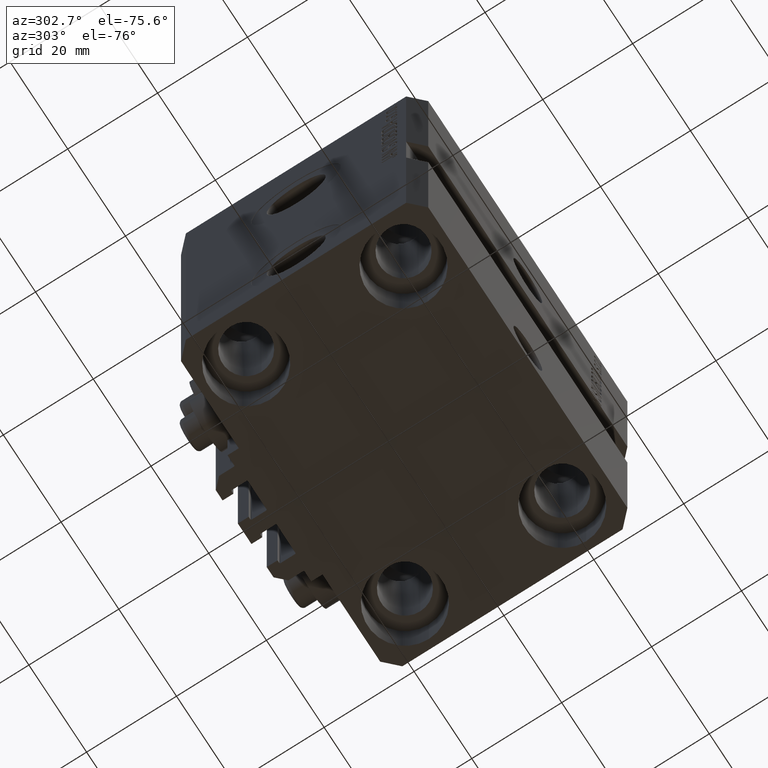
[diagram: clean part render]
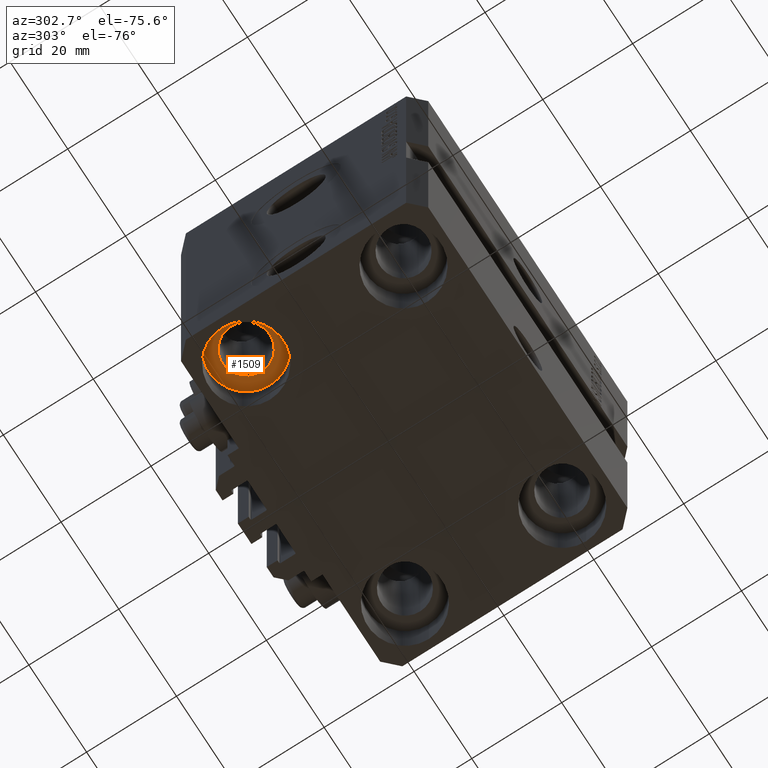
[diagram: same view with one face highlighted and labeled with its STEP entity id]
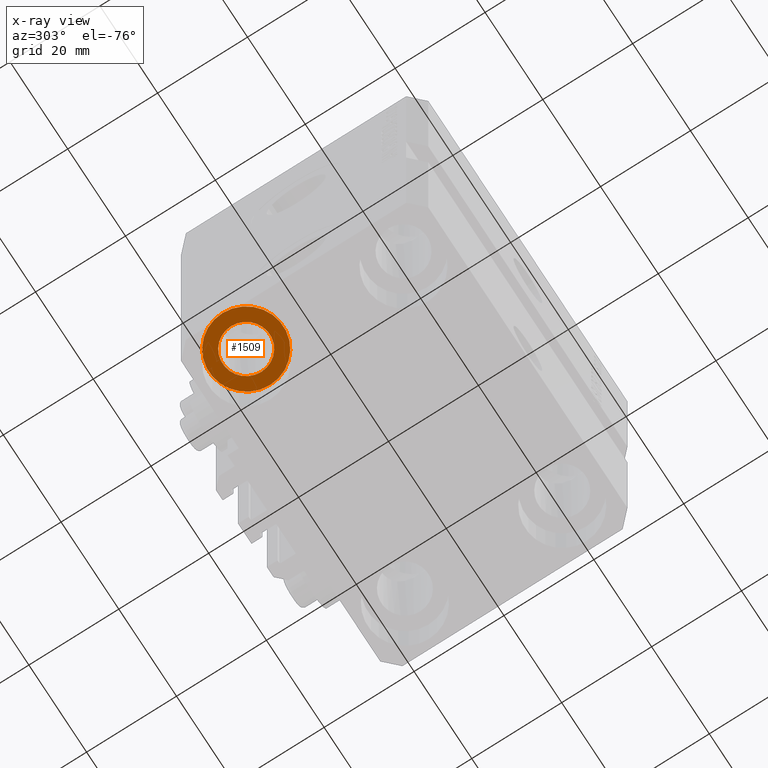
[diagram: x-ray of the same camera — body ghosted, the highlighted face saturated]
A machine part, auxiliary view. The second image highlights one B-rep face of the part: STEP entity #1509.
The next image is the same camera in x-ray: the body ghosted, the highlighted face saturated — about 0% of this face is hidden behind the body in this view.
In plain terms, the highlighted planar face has unit normal (0, 0, -1).
Its self-contained STEP definition (entity closure, byte-faithful):
#532 = AXIS2_PLACEMENT_3D ( 'NONE', #37401, #22269, #37155 ) ;
#1509 = ADVANCED_FACE ( 'NONE', ( #47063, #17852 ), #7285, .T. ) ;
#1625 = AXIS2_PLACEMENT_3D ( 'NONE', #23702, #39305, #23944 ) ;
#1639 = DIRECTION ( 'NONE',  ( -0.000000000000000000, -0.000000000000000000, 1.000000000000000000 ) ) ;
#1849 = EDGE_LOOP ( 'NONE', ( #36982, #41050 ) ) ;
#4889 = EDGE_CURVE ( 'NONE', #25470, #31148, #38794, .T. ) ;
#6604 = EDGE_CURVE ( 'NONE', #46029, #31514, #16612, .T. ) ;
#7285 = PLANE ( 'NONE',  #21190 ) ;
#7361 = CIRCLE ( 'NONE', #15010, 8.250000000000000000 ) ;
#7503 = DIRECTION ( 'NONE',  ( -0.000000000000000000, -0.000000000000000000, 1.000000000000000000 ) ) ;
#9284 = CIRCLE ( 'NONE', #1625, 5.249999999999997335 ) ;
#10873 = CARTESIAN_POINT ( 'NONE',  ( -27.50000000000000355, 17.50000000000000000, -69.00000000000000000 ) ) ;
#15010 = AXIS2_PLACEMENT_3D ( 'NONE', #45470, #1639, #31089 ) ;
#15521 = EDGE_CURVE ( 'NONE', #31148, #25470, #9284, .T. ) ;
#16612 = CIRCLE ( 'NONE', #20422, 8.250000000000000000 ) ;
#16894 = ORIENTED_EDGE ( 'NONE', *, *, #4889, .F. ) ;
#17852 = FACE_OUTER_BOUND ( 'NONE', #1849, .T. ) ;
#20422 = AXIS2_PLACEMENT_3D ( 'NONE', #44373, #7503, #22107 ) ;
#21190 = AXIS2_PLACEMENT_3D ( 'NONE', #10873, #32468, #36320 ) ;
#21368 = EDGE_LOOP ( 'NONE', ( #29122, #16894 ) ) ;
#22107 = DIRECTION ( 'NONE',  ( 1.000000000000000000, 0.000000000000000000, 0.000000000000000000 ) ) ;
#22269 = DIRECTION ( 'NONE',  ( 0.000000000000000000, 0.000000000000000000, -1.000000000000000000 ) ) ;
#23702 = CARTESIAN_POINT ( 'NONE',  ( -27.50000000000000355, 17.50000000000000000, -69.00000000000000000 ) ) ;
#23944 = DIRECTION ( 'NONE',  ( -1.000000000000000000, 0.000000000000000000, 0.000000000000000000 ) ) ;
#25470 = VERTEX_POINT ( 'NONE', #33002 ) ;
#29122 = ORIENTED_EDGE ( 'NONE', *, *, #15521, .F. ) ;
#29342 = EDGE_CURVE ( 'NONE', #31514, #46029, #7361, .T. ) ;
#31089 = DIRECTION ( 'NONE',  ( 1.000000000000000000, 0.000000000000000000, 0.000000000000000000 ) ) ;
#31148 = VERTEX_POINT ( 'NONE', #44211 ) ;
#31489 = CARTESIAN_POINT ( 'NONE',  ( -35.75000000000000711, 17.50000000000000000, -69.00000000000000000 ) ) ;
#31514 = VERTEX_POINT ( 'NONE', #43221 ) ;
#32468 = DIRECTION ( 'NONE',  ( 0.000000000000000000, 0.000000000000000000, -1.000000000000000000 ) ) ;
#33002 = CARTESIAN_POINT ( 'NONE',  ( -32.75000000000000000, 17.50000000000000000, -69.00000000000000000 ) ) ;
#36320 = DIRECTION ( 'NONE',  ( 1.000000000000000000, 0.000000000000000000, 0.000000000000000000 ) ) ;
#36982 = ORIENTED_EDGE ( 'NONE', *, *, #6604, .F. ) ;
#37155 = DIRECTION ( 'NONE',  ( -1.000000000000000000, 0.000000000000000000, 0.000000000000000000 ) ) ;
#37401 = CARTESIAN_POINT ( 'NONE',  ( -27.50000000000000355, 17.50000000000000000, -69.00000000000000000 ) ) ;
#38794 = CIRCLE ( 'NONE', #532, 5.249999999999997335 ) ;
#39305 = DIRECTION ( 'NONE',  ( 0.000000000000000000, 0.000000000000000000, -1.000000000000000000 ) ) ;
#41050 = ORIENTED_EDGE ( 'NONE', *, *, #29342, .F. ) ;
#43221 = CARTESIAN_POINT ( 'NONE',  ( -19.25000000000000355, 17.50000000000000000, -69.00000000000000000 ) ) ;
#44211 = CARTESIAN_POINT ( 'NONE',  ( -22.25000000000000355, 17.50000000000000000, -69.00000000000000000 ) ) ;
#44373 = CARTESIAN_POINT ( 'NONE',  ( -27.50000000000000355, 17.50000000000000000, -69.00000000000000000 ) ) ;
#45470 = CARTESIAN_POINT ( 'NONE',  ( -27.50000000000000355, 17.50000000000000000, -69.00000000000000000 ) ) ;
#46029 = VERTEX_POINT ( 'NONE', #31489 ) ;
#47063 = FACE_BOUND ( 'NONE', #21368, .T. ) ;